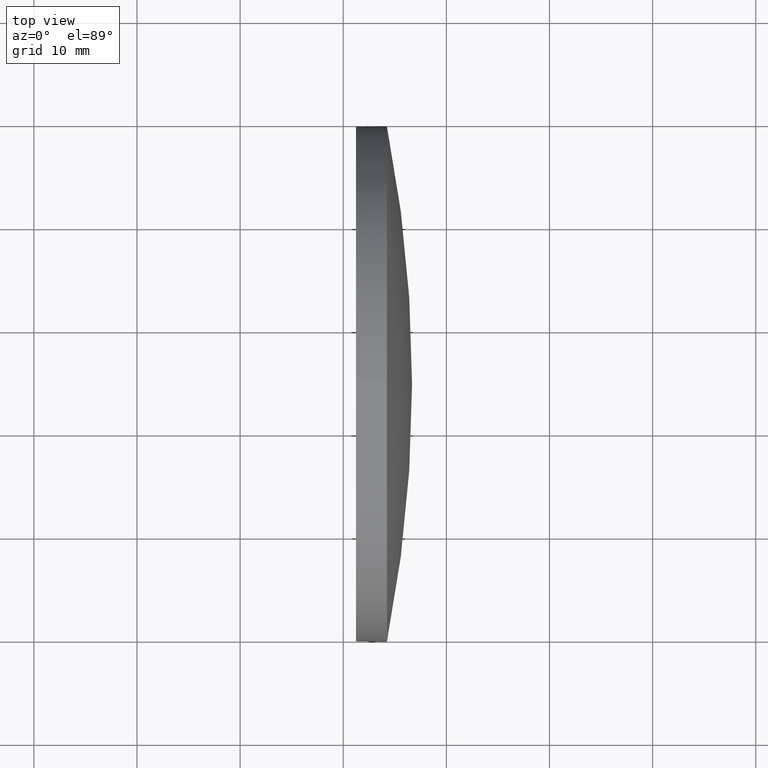
[diagram: clean part render]
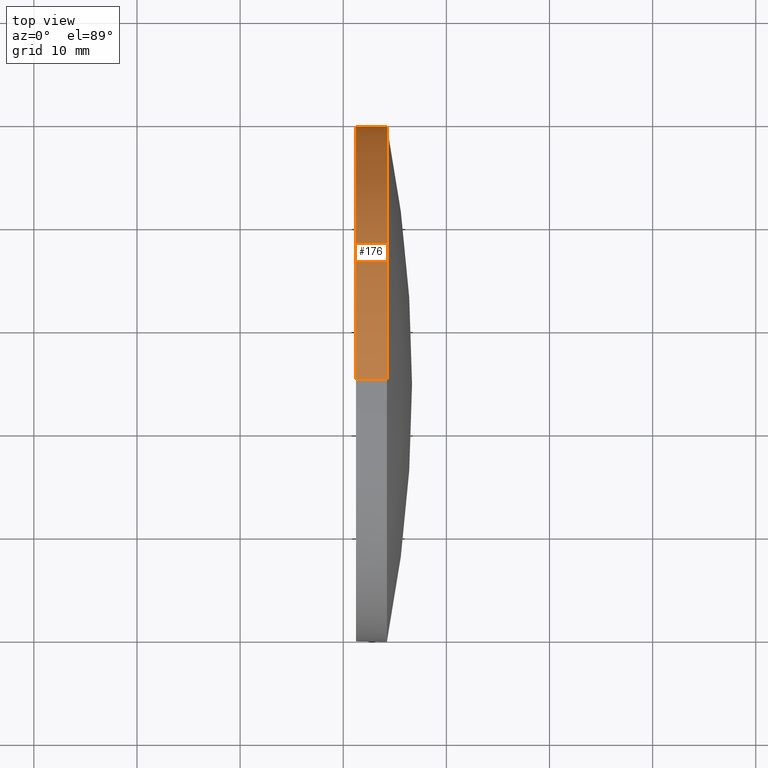
[diagram: same view with one face highlighted and labeled with its STEP entity id]
A machine part, top view. The second image highlights one B-rep face of the part: STEP entity #176.
In plain terms, the highlighted cylindrical surface (partial cylindrical patch) has radius 25 mm, axis along (-1, -0, -0).
Its self-contained STEP definition (entity closure, byte-faithful):
#2 = CIRCLE ( 'NONE', #154, 24.99999999999999300 ) ;
#4 = CARTESIAN_POINT ( 'NONE',  ( 501.2313025247127000, 84.58581718796108400, 0.0000000000000000000 ) ) ;
#11 = CIRCLE ( 'NONE', #117, 24.99999999999999300 ) ;
#13 = CARTESIAN_POINT ( 'NONE',  ( 504.2313025247127000, 84.58581718796108400, 0.0000000000000000000 ) ) ;
#16 = DIRECTION ( 'NONE',  ( -1.000000000000000000, -0.0000000000000000000, -0.0000000000000000000 ) ) ;
#19 = DIRECTION ( 'NONE',  ( -1.000000000000000000, -0.0000000000000000000, -0.0000000000000000000 ) ) ;
#21 = CARTESIAN_POINT ( 'NONE',  ( 497.2595272355965800, 84.58581718796108400, -24.99999999999999300 ) ) ;
#29 = LINE ( 'NONE', #34, #131 ) ;
#30 = DIRECTION ( 'NONE',  ( 0.0000000000000000000, 0.0000000000000000000, 1.000000000000000000 ) ) ;
#31 = CIRCLE ( 'NONE', #40, 24.99999999999999300 ) ;
#33 = DIRECTION ( 'NONE',  ( -1.000000000000000000, -0.0000000000000000000, -0.0000000000000000000 ) ) ;
#34 = CARTESIAN_POINT ( 'NONE',  ( 497.2595272355965800, 84.58581718796108400, 24.99999999999999300 ) ) ;
#37 = VECTOR ( 'NONE', #130, 1000.000000000000000 ) ;
#40 = AXIS2_PLACEMENT_3D ( 'NONE', #141, #54, #170 ) ;
#45 = CARTESIAN_POINT ( 'NONE',  ( 504.2313025247127000, 84.58581718796108400, 24.99999999999999300 ) ) ;
#50 = ORIENTED_EDGE ( 'NONE', *, *, #66, .T. ) ;
#54 = DIRECTION ( 'NONE',  ( -1.000000000000000000, -0.0000000000000000000, -0.0000000000000000000 ) ) ;
#60 = AXIS2_PLACEMENT_3D ( 'NONE', #146, #118, #99 ) ;
#66 = EDGE_CURVE ( 'NONE', #159, #109, #11, .T. ) ;
#87 = VERTEX_POINT ( 'NONE', #144 ) ;
#90 = ORIENTED_EDGE ( 'NONE', *, *, #94, .T. ) ;
#92 = FACE_OUTER_BOUND ( 'NONE', #155, .T. ) ;
#93 = VERTEX_POINT ( 'NONE', #123 ) ;
#94 = EDGE_CURVE ( 'NONE', #109, #104, #31, .T. ) ;
#95 = CARTESIAN_POINT ( 'NONE',  ( 504.2313025247127000, 84.58581718796108400, -24.99999999999999300 ) ) ;
#99 = DIRECTION ( 'NONE',  ( 0.0000000000000000000, 0.0000000000000000000, 1.000000000000000000 ) ) ;
#104 = VERTEX_POINT ( 'NONE', #95 ) ;
#106 = DIRECTION ( 'NONE',  ( 0.0000000000000000000, 0.0000000000000000000, 1.000000000000000000 ) ) ;
#109 = VERTEX_POINT ( 'NONE', #124 ) ;
#117 = AXIS2_PLACEMENT_3D ( 'NONE', #13, #16, #30 ) ;
#118 = DIRECTION ( 'NONE',  ( -1.000000000000000000, -0.0000000000000000000, -0.0000000000000000000 ) ) ;
#119 = ORIENTED_EDGE ( 'NONE', *, *, #163, .T. ) ;
#123 = CARTESIAN_POINT ( 'NONE',  ( 501.2313025247127000, 84.58581718796108400, -24.99999999999999300 ) ) ;
#124 = CARTESIAN_POINT ( 'NONE',  ( 504.2313025247127000, 109.5858171879610400, 0.0000000000000000000 ) ) ;
#125 = ORIENTED_EDGE ( 'NONE', *, *, #165, .F. ) ;
#130 = DIRECTION ( 'NONE',  ( -1.000000000000000000, -0.0000000000000000000, -0.0000000000000000000 ) ) ;
#131 = VECTOR ( 'NONE', #33, 1000.000000000000000 ) ;
#141 = CARTESIAN_POINT ( 'NONE',  ( 504.2313025247127000, 84.58581718796108400, 0.0000000000000000000 ) ) ;
#144 = CARTESIAN_POINT ( 'NONE',  ( 501.2313025247127000, 84.58581718796108400, 24.99999999999999300 ) ) ;
#146 = CARTESIAN_POINT ( 'NONE',  ( 497.2595272355965800, 84.58581718796108400, 0.0000000000000000000 ) ) ;
#151 = LINE ( 'NONE', #21, #37 ) ;
#154 = AXIS2_PLACEMENT_3D ( 'NONE', #4, #19, #106 ) ;
#155 = EDGE_LOOP ( 'NONE', ( #90, #119, #125, #183, #50 ) ) ;
#159 = VERTEX_POINT ( 'NONE', #45 ) ;
#160 = CYLINDRICAL_SURFACE ( 'NONE', #60, 24.99999999999999300 ) ;
#163 = EDGE_CURVE ( 'NONE', #104, #93, #151, .T. ) ;
#165 = EDGE_CURVE ( 'NONE', #87, #93, #2, .T. ) ;
#170 = DIRECTION ( 'NONE',  ( 0.0000000000000000000, 0.0000000000000000000, 1.000000000000000000 ) ) ;
#175 = EDGE_CURVE ( 'NONE', #159, #87, #29, .T. ) ;
#176 = ADVANCED_FACE ( 'NONE', ( #92 ), #160, .T. ) ;
#183 = ORIENTED_EDGE ( 'NONE', *, *, #175, .F. ) ;